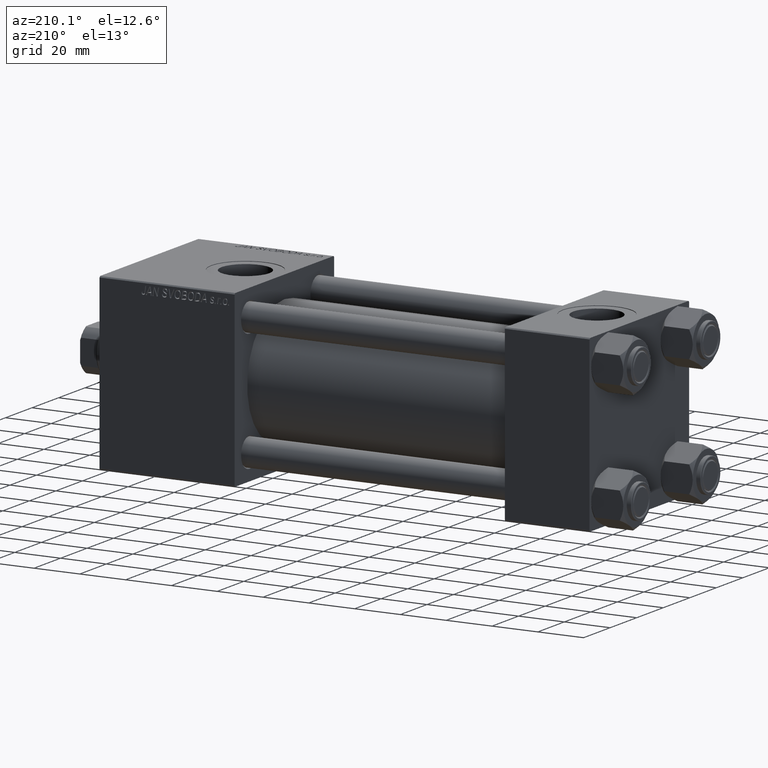
[diagram: clean part render]
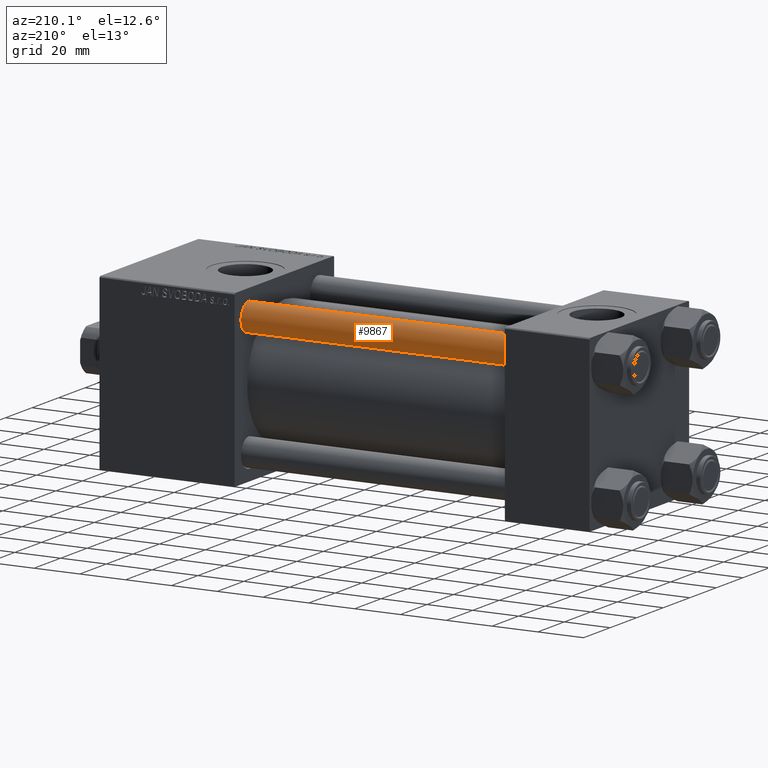
[diagram: same view with one face highlighted and labeled with its STEP entity id]
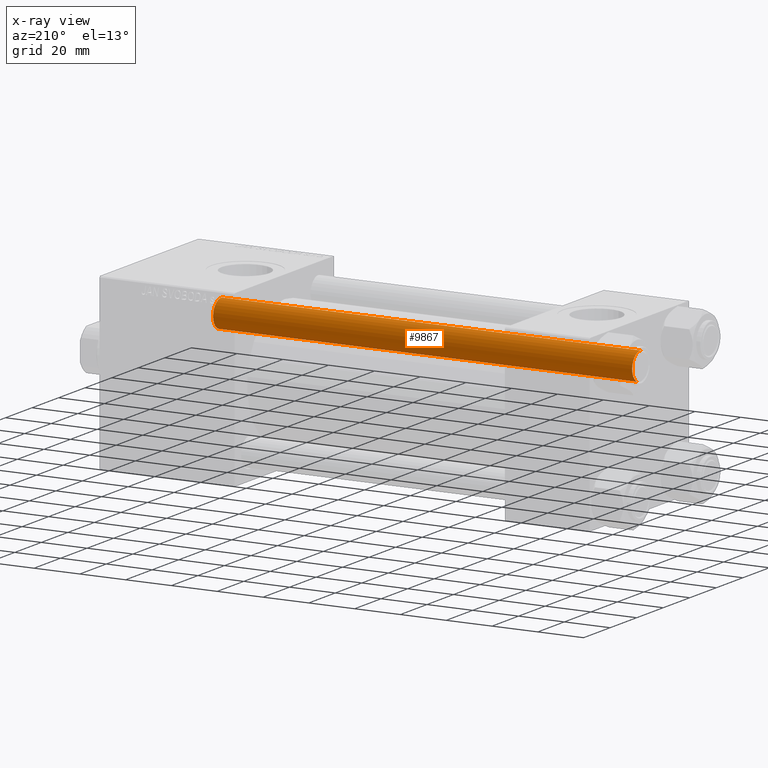
[diagram: x-ray of the same camera — body ghosted, the highlighted face saturated]
A machine part, auxiliary view. The second image highlights one B-rep face of the part: STEP entity #9867.
The next image is the same camera in x-ray: the body ghosted, the highlighted face saturated — about 0% of this face is hidden behind the body in this view.
In plain terms, the highlighted cylindrical surface (edge-blend (fillet) strip) has radius 6 mm, axis along (-1, 0, 0).
Its self-contained STEP definition (entity closure, byte-faithful):
#2604 = CARTESIAN_POINT ( 'NONE',  ( -6.000000000000000888, 0.000000000000000000, 183.5000000000000000 ) ) ;
#3663 = DIRECTION ( 'NONE',  ( -0.000000000000000000, -0.000000000000000000, 1.000000000000000000 ) ) ;
#3823 = EDGE_CURVE ( 'NONE', #46560, #15988, #22515, .T. ) ;
#4018 = CIRCLE ( 'NONE', #10525, 6.000000000000000888 ) ;
#7446 = ORIENTED_EDGE ( 'NONE', *, *, #46412, .T. ) ;
#9867 = ADVANCED_FACE ( 'NONE', ( #48555 ), #36630, .T. ) ;
#10138 = DIRECTION ( 'NONE',  ( -0.000000000000000000, -0.000000000000000000, -1.000000000000000000 ) ) ;
#10179 = CARTESIAN_POINT ( 'NONE',  ( -6.000000000000000888, 0.000000000000000000, 0.5000000000000004441 ) ) ;
#10525 = AXIS2_PLACEMENT_3D ( 'NONE', #38544, #3663, #42104 ) ;
#11260 = ORIENTED_EDGE ( 'NONE', *, *, #17437, .F. ) ;
#15988 = VERTEX_POINT ( 'NONE', #25175 ) ;
#16292 = VERTEX_POINT ( 'NONE', #23954 ) ;
#17032 = DIRECTION ( 'NONE',  ( -1.000000000000000000, 0.000000000000000000, 0.000000000000000000 ) ) ;
#17437 = EDGE_CURVE ( 'NONE', #46560, #25185, #23653, .T. ) ;
#19334 = ORIENTED_EDGE ( 'NONE', *, *, #19991, .T. ) ;
#19346 = DIRECTION ( 'NONE',  ( -0.000000000000000000, -0.000000000000000000, -1.000000000000000000 ) ) ;
#19991 = EDGE_CURVE ( 'NONE', #15988, #16292, #36686, .T. ) ;
#20848 = CARTESIAN_POINT ( 'NONE',  ( 0.000000000000000000, 0.000000000000000000, 184.0000000000000000 ) ) ;
#22515 = CIRCLE ( 'NONE', #46079, 6.000000000000000888 ) ;
#23653 = LINE ( 'NONE', #50358, #32609 ) ;
#23954 = CARTESIAN_POINT ( 'NONE',  ( 6.000000000000000888, 7.347880794884120722E-16, 0.5000000000000004441 ) ) ;
#25175 = CARTESIAN_POINT ( 'NONE',  ( 6.000000000000000888, 7.347880794884120722E-16, 183.5000000000000000 ) ) ;
#25185 = VERTEX_POINT ( 'NONE', #10179 ) ;
#26556 = EDGE_LOOP ( 'NONE', ( #34321, #19334, #7446, #11260 ) ) ;
#26577 = CARTESIAN_POINT ( 'NONE',  ( 0.000000000000000000, 0.000000000000000000, 183.5000000000000000 ) ) ;
#32469 = AXIS2_PLACEMENT_3D ( 'NONE', #20848, #10138, #17032 ) ;
#32609 = VECTOR ( 'NONE', #38418, 1000.000000000000000 ) ;
#34321 = ORIENTED_EDGE ( 'NONE', *, *, #3823, .T. ) ;
#36630 = CYLINDRICAL_SURFACE ( 'NONE', #32469, 6.000000000000000888 ) ;
#36686 = LINE ( 'NONE', #37442, #43285 ) ;
#37442 = CARTESIAN_POINT ( 'NONE',  ( 6.000000000000000888, 7.347880794884120722E-16, 184.0000000000000000 ) ) ;
#38418 = DIRECTION ( 'NONE',  ( -0.000000000000000000, -0.000000000000000000, -1.000000000000000000 ) ) ;
#38544 = CARTESIAN_POINT ( 'NONE',  ( 0.000000000000000000, 0.000000000000000000, 0.5000000000000004441 ) ) ;
#42104 = DIRECTION ( 'NONE',  ( 1.000000000000000000, 0.000000000000000000, 0.000000000000000000 ) ) ;
#43285 = VECTOR ( 'NONE', #19346, 1000.000000000000000 ) ;
#45385 = DIRECTION ( 'NONE',  ( 1.000000000000000000, 0.000000000000000000, 0.000000000000000000 ) ) ;
#46079 = AXIS2_PLACEMENT_3D ( 'NONE', #26577, #49962, #45385 ) ;
#46412 = EDGE_CURVE ( 'NONE', #16292, #25185, #4018, .T. ) ;
#46560 = VERTEX_POINT ( 'NONE', #2604 ) ;
#48555 = FACE_OUTER_BOUND ( 'NONE', #26556, .T. ) ;
#49962 = DIRECTION ( 'NONE',  ( 0.000000000000000000, 0.000000000000000000, -1.000000000000000000 ) ) ;
#50358 = CARTESIAN_POINT ( 'NONE',  ( -6.000000000000000888, 0.000000000000000000, 184.0000000000000000 ) ) ;